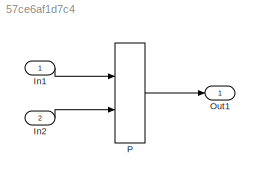
MODEL slx_57ce6af1d7c4
KIND model
CONFIG AbsTol = auto
CONFIG EnableMultiTasking = off
CONFIG FixedStep = auto
CONFIG MaxStep = auto
CONFIG MinStep = auto
CONFIG RelTol = 1e-3
CONFIG SampleTimeConstraint = Unconstrained
CONFIG Solver = FixedStepDiscrete
CONFIG SolverName = FixedStepDiscrete
CONFIG StartTime = 0.0
CONFIG StopTime = 10.0
BLOCK [Inport] In1
  IconDisplay = Port number
  OutMax = 127
  OutMin = 0
  PortDimensions = 1
BLOCK [Inport] In2
  IconDisplay = Port number
  OutMax = 127
  OutMin = 0
  Port = 2
BLOCK [Outport] Out1
  IconDisplay = Port number
BLOCK [Lookup_n-D] P
  BreakpointsForDimension1FirstPoint = 61.3258
  BreakpointsForDimension1Spacing = 1.5
  BreakpointsForDimension2FirstPoint = 61.2756
  BreakpointsForDimension2Spacing = 1.5
  BreakpointsForDimension3 = [5, 7]
  BreakpointsSpecification = Even spacing
  InternalRulePriority = Speed
  InterpMethod = Nearest
  Ports = [2, 1]
  RndMeth = Simplest
  Table = [25.249873360095 17.388872228386 63.6077046312779 15.3295014007696 86.2459401735482;65.0083890060477 33.4786187842717 20.5011039938019 91.352549695879 85.9563839124315;81.1797512694434 91.2330292039263 46.0708225549197 34.6164937130269 33.1657363931517]
LINE In1:1 -> P:1
LINE In2:1 -> P:2
LINE P:1 -> Out1:1
